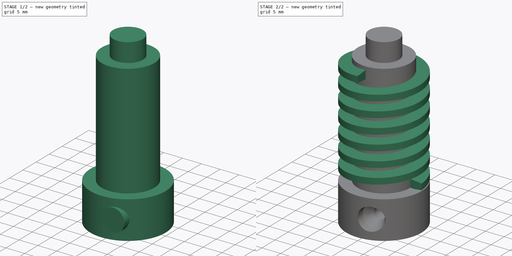
[diagram: build sequence overview — one tinted view per stage of 2, left to right]
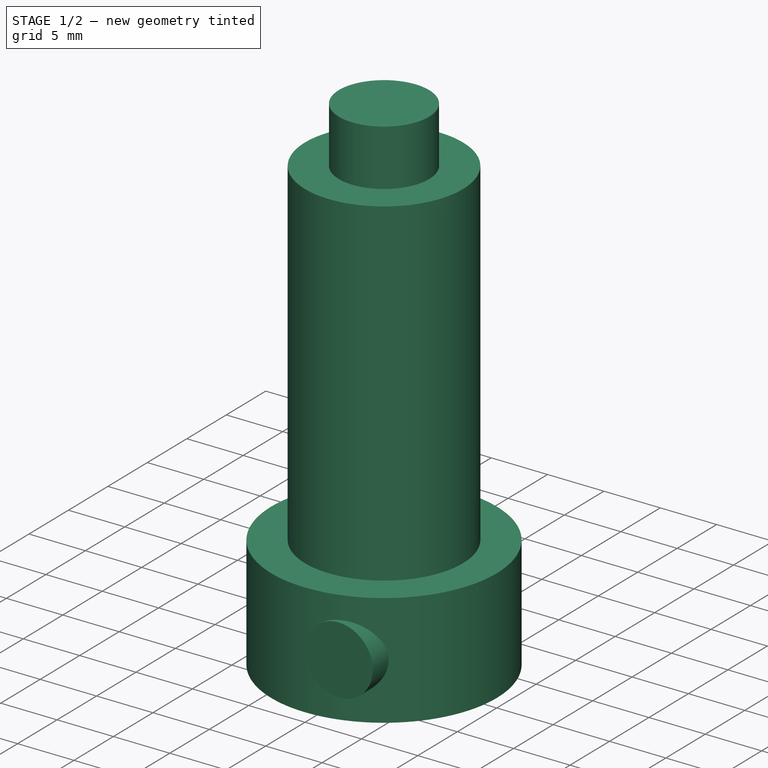
[diagram: stage 1 of 2 — iso view after this stage's code; geometry added in this stage tinted green]
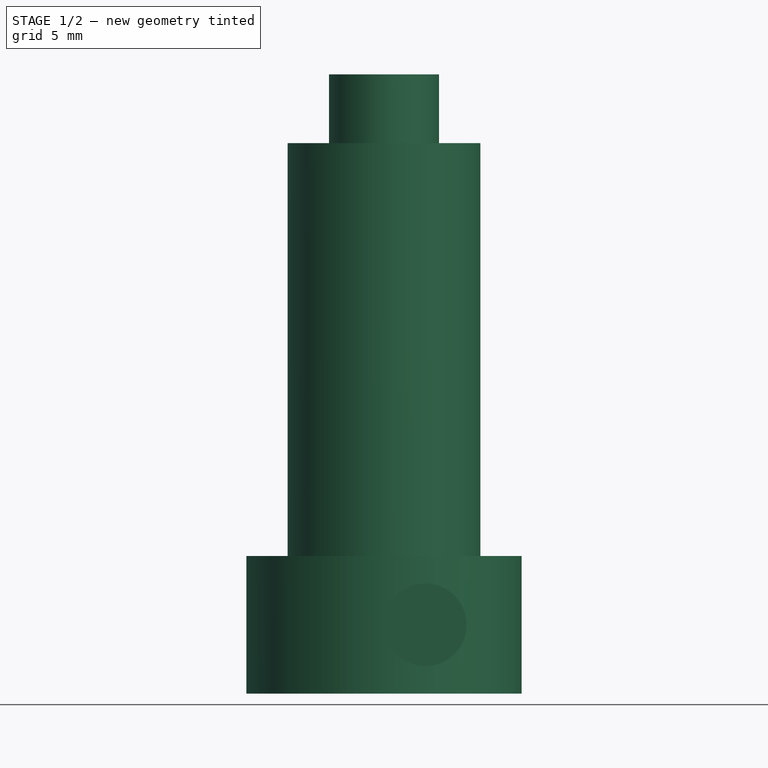
[diagram: stage 1 of 2 — front view after this stage's code; geometry added in this stage tinted green]
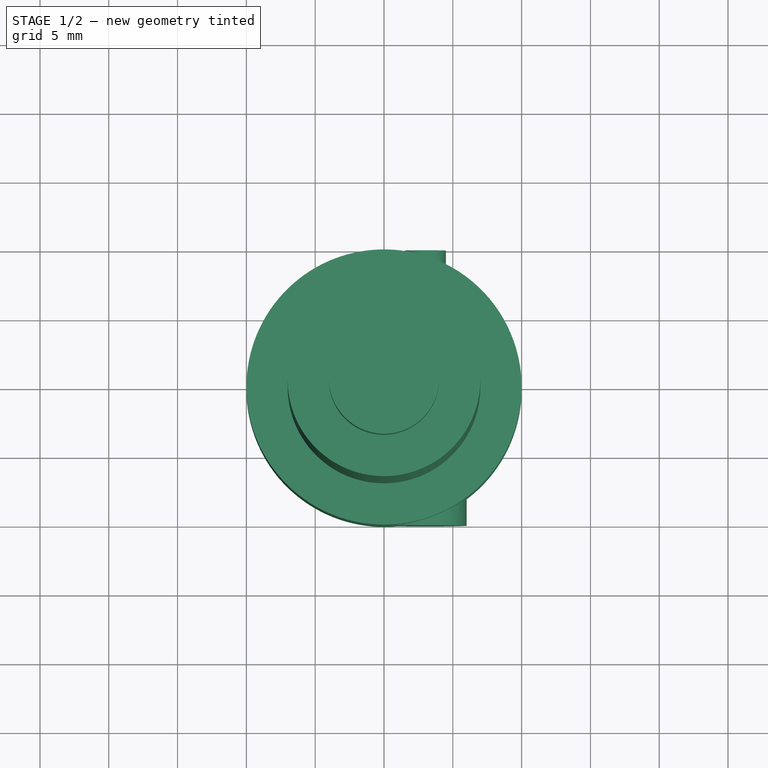
[diagram: stage 1 of 2 — top view after this stage's code; geometry added in this stage tinted green]
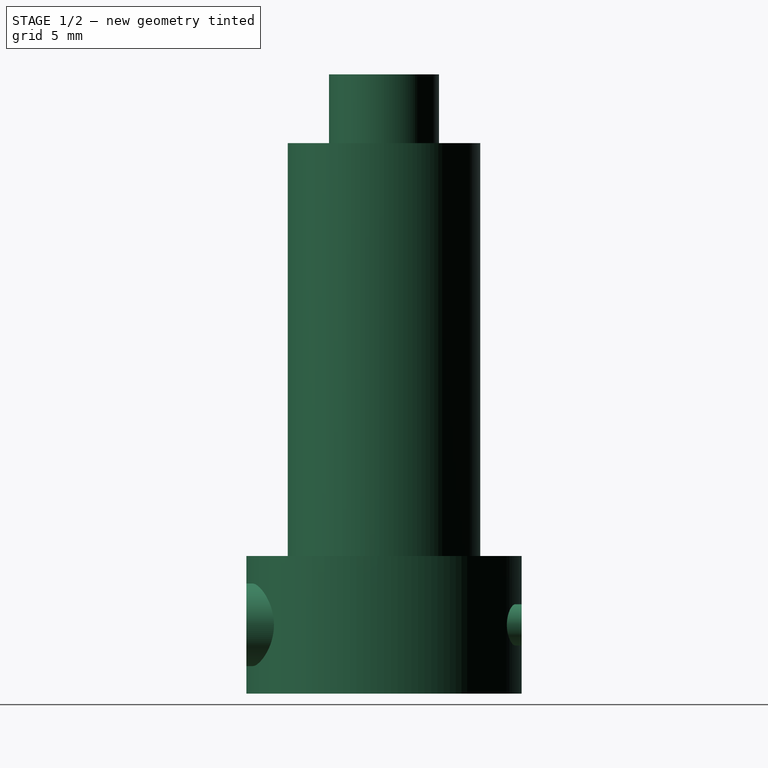
[diagram: stage 1 of 2 — right view after this stage's code; geometry added in this stage tinted green]
FCSTD DOCUMENT  (FreeCAD 0.14R3700 (Git))
Label: worm_gear-cshields2
License: CC-BY 3.0
LicenseURL: http://creativecommons.org/licenses/by/3.0/
objects: Sketcher::SketchObject×3, PartDesign::Revolution×2, Part::Helix×1, Part::Sweep×1, Part::Cut×1
note: 10 computed .brp shape members not serialized (recipe doc carries the construction recipe); baked Part::Feature solids carry a one-line shape summary decoded from their .brp

FEATURE [Sketcher::SketchObject] Sketch004
  Placement = pos=(0,0,0) rot=(1,0,0;1.5708rad)
  sketch-geometry (10):
    g0: LineSegment StartX=3 StartY=0 StartZ=0 EndX=10 EndY=0 EndZ=0
    g1: LineSegment StartX=10 StartY=0 StartZ=0 EndX=10 EndY=10 EndZ=0
    g2: LineSegment StartX=10 StartY=10 StartZ=0 EndX=7 EndY=10 EndZ=0
    g3: LineSegment StartX=7 StartY=10 StartZ=0 EndX=7 EndY=40 EndZ=0
    g4: LineSegment StartX=7 StartY=40 StartZ=0 EndX=4 EndY=40 EndZ=0
    g5: LineSegment StartX=4 StartY=40 StartZ=0 EndX=4 EndY=45 EndZ=0
    g6: LineSegment StartX=4 StartY=45 StartZ=0 EndX=0 EndY=45 EndZ=0
    g7: LineSegment StartX=0 StartY=45 StartZ=0 EndX=0 EndY=20 EndZ=0
    g8: LineSegment StartX=0 StartY=20 StartZ=0 EndX=3 EndY=20 EndZ=0
    g9: LineSegment StartX=3 StartY=20 StartZ=0 EndX=3 EndY=0 EndZ=0
  constraints (30):
    c: PointOnObject(g0,g-1)
    c: Horizontal(g0)
    c: Coincident(g0,g1)
    c: Vertical(g1)
    c: Coincident(g1,g2)
    c: Horizontal(g2)
    c: Coincident(g2,g3)
    c: Vertical(g3)
    c: Coincident(g3,g4)
    c: Horizontal(g4)
    c: Coincident(g4,g5)
    c: Vertical(g5)
    c: Coincident(g5,g6)
    c: PointOnObject(g6,g-2)
    c: Horizontal(g6)
    c: Coincident(g6,g7)
    c: Distance(g2) = 3
    c: Distance(g1) = 10
    c: Distance(g6) = 4
    c: Coincident(g7,g8)
    c: Horizontal(g8)
    c: Coincident(g8,g9)
    c: Coincident(g9,g0)
    c: PointOnObject(g7,g-2)
    c: Vertical(g9)
    c: DistanceX(g-2,g0) = 10
    c: Distance(g-1,g6) = 45
    c: Distance(g8) = 3
    c: Distance(g9) = 20
    c: Distance(g5) = 5
FEATURE [PartDesign::Revolution] Revolution002  label="Base revolution001"
  Angle = 360
  Axis = (0,0,1)
  Base = (0,0,0)
  Placement = pos=(0,0,0) rot=(1,0,0;1.5708rad)
  ReferenceAxis = -> Sketch004 [V_Axis]
  Reversed = true
  Sketch = -> Sketch004
FEATURE [Sketcher::SketchObject] Sketch005
  Placement = pos=(3,0,5) rot=(0,0,1;0rad)
  sketch-geometry (6):
    g0: LineSegment StartX=0 StartY=10 StartZ=0 EndX=1.5 EndY=10 EndZ=0
    g1: LineSegment StartX=3 StartY=-10 StartZ=0 EndX=0 EndY=-10 EndZ=0
    g2: LineSegment StartX=0 StartY=-10 StartZ=0 EndX=0 EndY=10 EndZ=0
    g3: LineSegment StartX=1.5 StartY=10 StartZ=0 EndX=1.5 EndY=-6 EndZ=0
    g4: LineSegment StartX=1.5 StartY=-6 StartZ=0 EndX=3 EndY=-8 EndZ=0
    g5: LineSegment StartX=3 StartY=-8 StartZ=0 EndX=3 EndY=-10 EndZ=0
  constraints (18):
    c: Horizontal(g0)
    c: Coincident(g1,g2)
    c: Coincident(g2,g0)
    c: Vertical(g2)
    c: Horizontal(g1)
    c: DistanceY(g-1,g1) = -10
    c: DistanceY(g-1,g0) = 10
    c: Distance(g1) = 3
    c: PointOnObject(g0,g-2)
    c: Distance(g0) = 1.5
    c: Coincident(g0,g3)
    c: Vertical(g3)
    c: Coincident(g3,g4)
    c: Coincident(g4,g5)
    c: Coincident(g5,g1)
    c: Vertical(g5)
    c: Distance(g5) = 2
    c: DistanceY(g-1,g3) = -6
FEATURE [PartDesign::Revolution] Revolution003  label="Screwhole revolution001"
  Angle = 360
  Axis = (0,1,0)
  Base = (3,0,5)
  Placement = pos=(3,0,5) rot=(0,0,1;0rad)
  ReferenceAxis = -> Sketch005 [V_Axis]
  Reversed = true
  Sketch = -> Sketch005
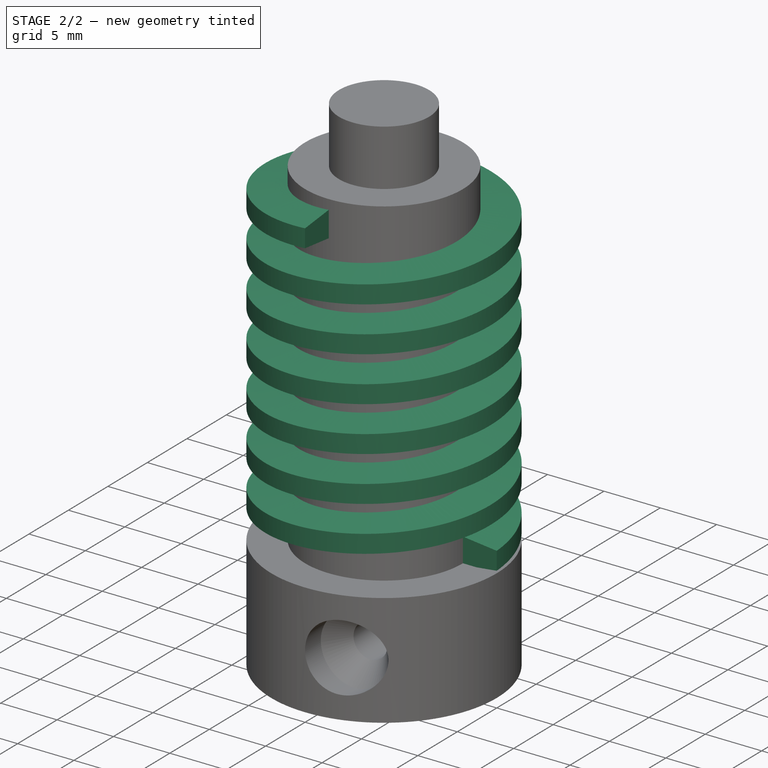
[diagram: stage 2 of 2 — iso view after this stage's code; geometry added in this stage tinted green]
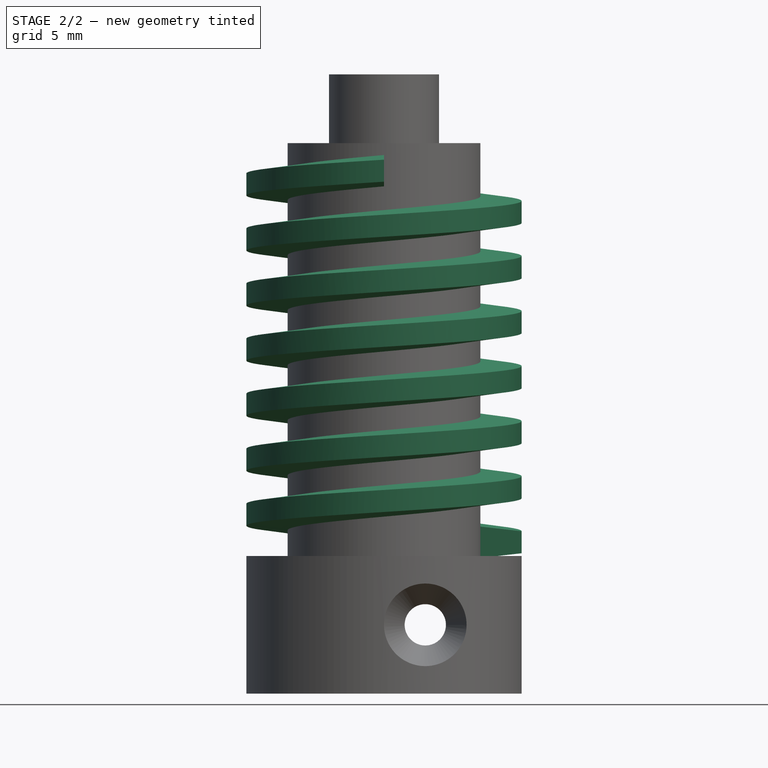
[diagram: stage 2 of 2 — front view after this stage's code; geometry added in this stage tinted green]
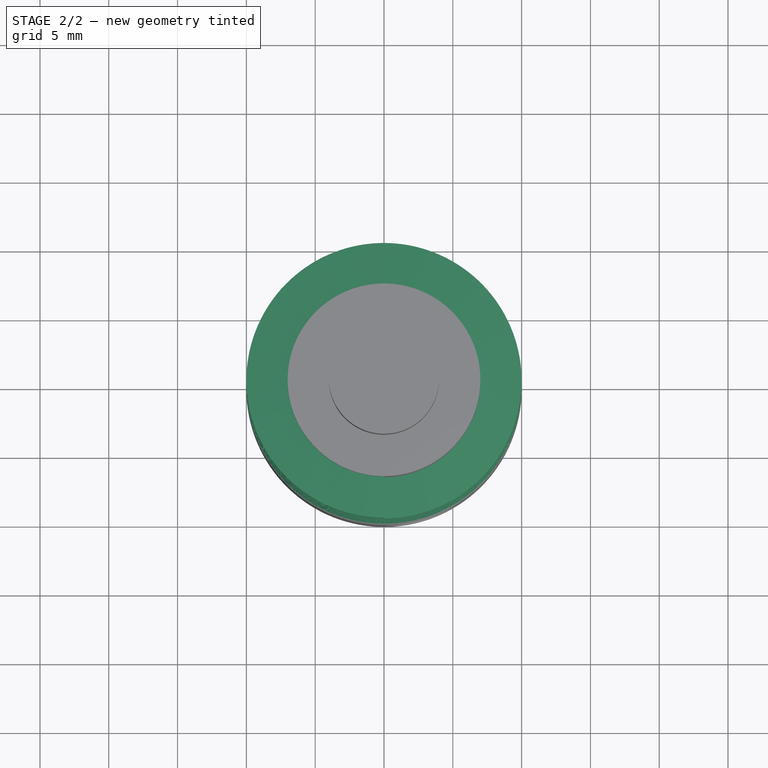
[diagram: stage 2 of 2 — top view after this stage's code; geometry added in this stage tinted green]
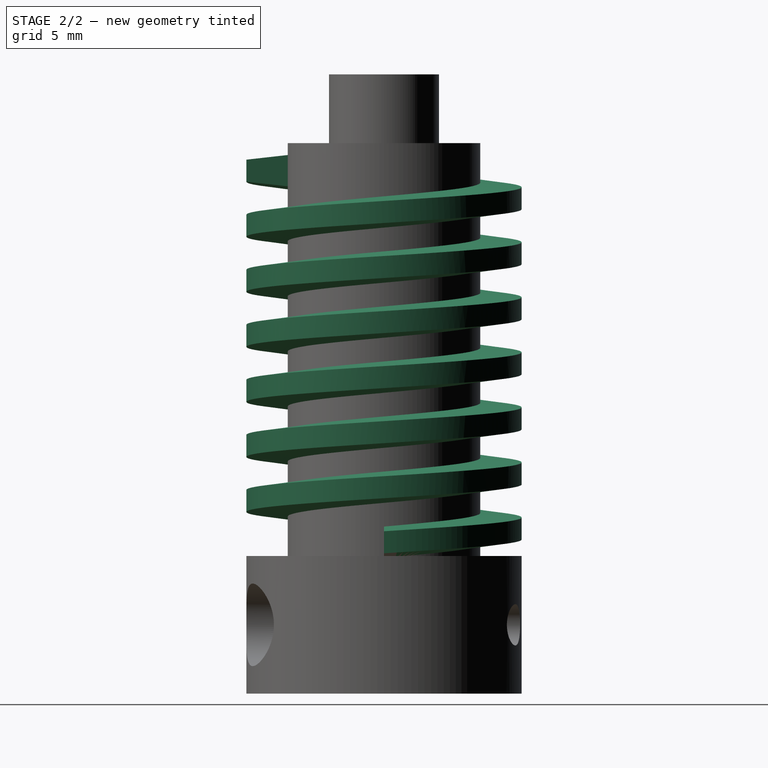
[diagram: stage 2 of 2 — right view after this stage's code; geometry added in this stage tinted green]
FEATURE [Part::Helix] Helix
  Angle = 0
  Height = 27
  LocalCoord = 0
  Pitch = 4
  Radius = 1
  Style = 1
FEATURE [Sketcher::SketchObject] Sketch
  Placement = pos=(0,0,0) rot=(1,0,0;1.5708rad)
  sketch-geometry (4):
    g0: LineSegment StartX=6 StartY=1.25 StartZ=0 EndX=6 EndY=-1.25 EndZ=0
    g1: LineSegment StartX=6 StartY=-1.25 StartZ=0 EndX=10 EndY=-0.8 EndZ=0
    g2: LineSegment StartX=10 StartY=-0.8 StartZ=0 EndX=10 EndY=0.8 EndZ=0
    g3: LineSegment StartX=10 StartY=0.8 StartZ=0 EndX=6 EndY=1.25 EndZ=0
  constraints (10):
    c: Coincident(g0,g1)
    c: Coincident(g1,g2)
    c: Coincident(g2,g3)
    c: Coincident(g3,g0)
    c: Symmetric(g2,g1,g-1)
    c: Symmetric(g0,g0,g-1)
    c: Distance(g2) = 1.6
    c: Distance(g0) = 2.5
    c: DistanceX(g-2,g2) = 10
    c: DistanceX(g-2,g0) = 6
FEATURE [Part::Sweep] Sweep
  Frenet = true
  Placement = pos=(0,0,11) rot=(0,0,1;0rad)
  Sections = -> [Sketch]
  Solid = true
  Spine = -> Helix [Edge1]
  Transition = 1
FEATURE [Part::Cut] Cut
  Base = -> Revolution002
  Tool = -> Revolution003
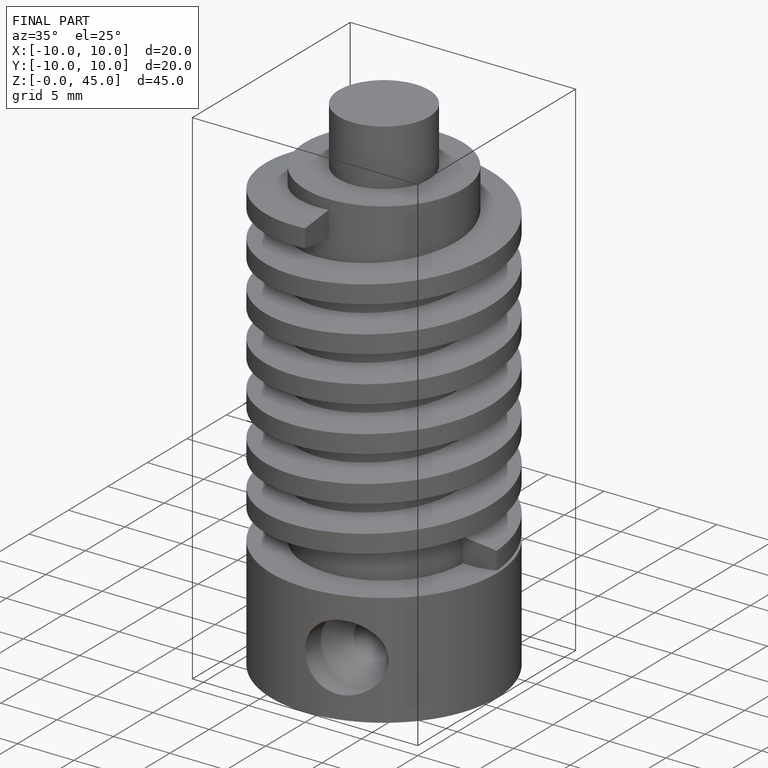
[diagram: finished part — iso view with bounding-box wireframe]
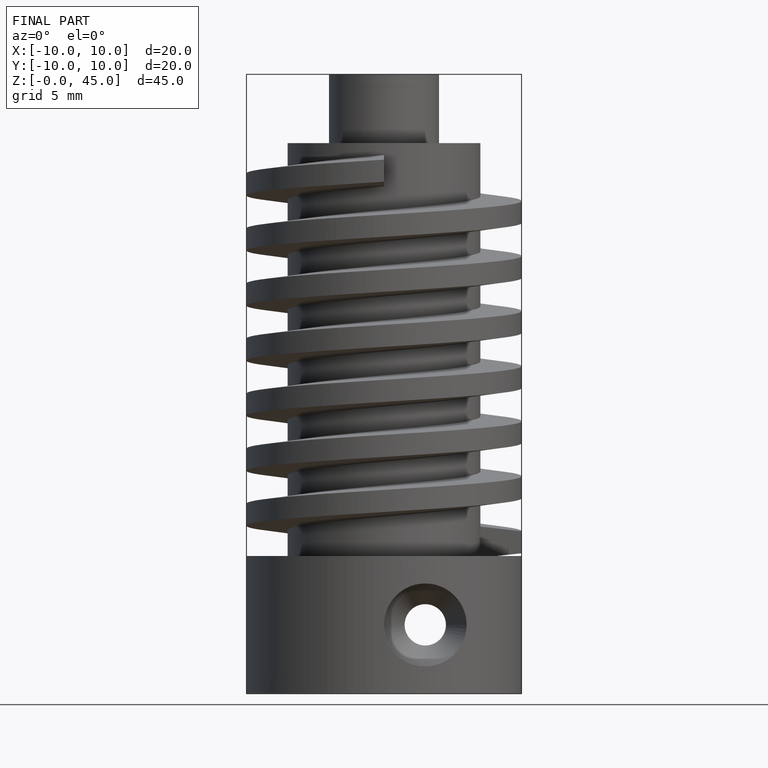
[diagram: finished part — front view with bounding-box wireframe]
